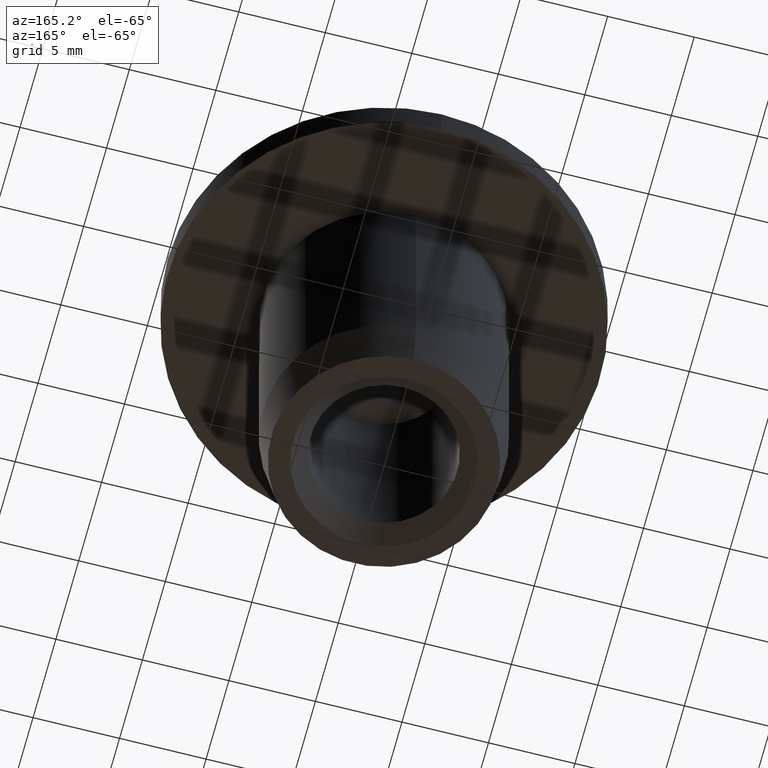
[diagram: clean part render]
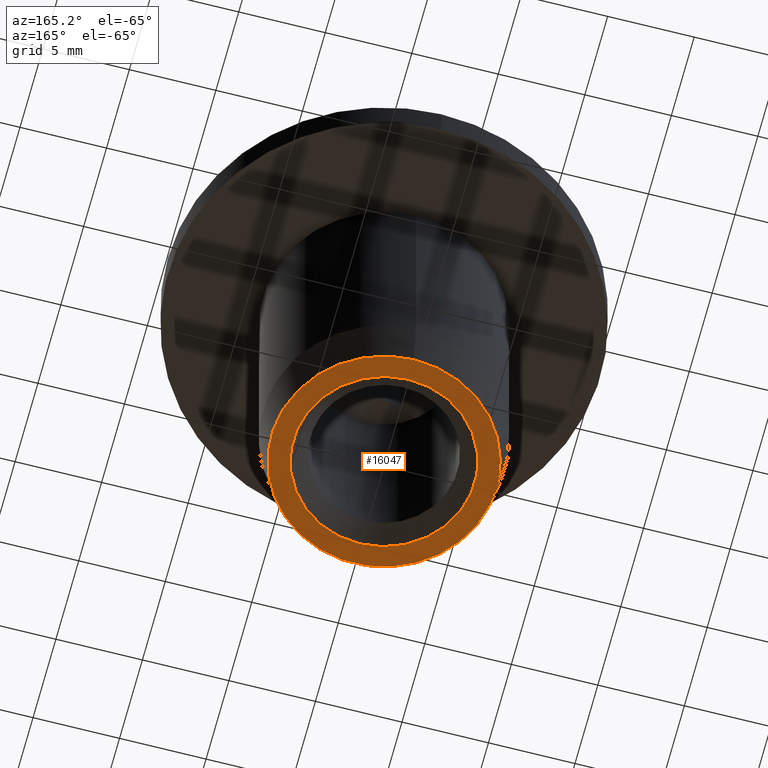
[diagram: same view with one face highlighted and labeled with its STEP entity id]
A machine part, auxiliary view. The second image highlights one B-rep face of the part: STEP entity #16047.
In plain terms, the highlighted planar face has unit normal (-0, 0, -1).
Its self-contained STEP definition (entity closure, byte-faithful):
#137 = AXIS2_PLACEMENT_3D ( 'NONE', #10447, #1639, #2836 ) ;
#760 = ORIENTED_EDGE ( 'NONE', *, *, #15434, .T. ) ;
#1639 = DIRECTION ( 'NONE',  ( -0.000000000000000000, 2.332352011257933532E-16, -1.000000000000000000 ) ) ;
#1648 = AXIS2_PLACEMENT_3D ( 'NONE', #4436, #3100, #14623 ) ;
#1920 = CIRCLE ( 'NONE', #137, 6.500000000000047962 ) ;
#2836 = DIRECTION ( 'NONE',  ( 0.000000000000000000, 1.000000000000000000, 2.668805347656606464E-16 ) ) ;
#3100 = DIRECTION ( 'NONE',  ( -0.000000000000000000, 2.332352011257933532E-16, -1.000000000000000000 ) ) ;
#3416 = CARTESIAN_POINT ( 'NONE',  ( 0.000000000000000000, 5.250000000000000000, -10.24999999999999822 ) ) ;
#3495 = DIRECTION ( 'NONE',  ( 0.000000000000000000, -2.332352011257933532E-16, 1.000000000000000000 ) ) ;
#3582 = CARTESIAN_POINT ( 'NONE',  ( 0.000000000000000000, 6.500000000000052403, -10.24999999999999822 ) ) ;
#4392 = FACE_OUTER_BOUND ( 'NONE', #9708, .T. ) ;
#4436 = CARTESIAN_POINT ( 'NONE',  ( 0.000000000000000000, 7.000000000000004441, -10.24999999999999822 ) ) ;
#4981 = FACE_BOUND ( 'NONE', #15461, .T. ) ;
#8161 = VERTEX_POINT ( 'NONE', #3582 ) ;
#8379 = PLANE ( 'NONE',  #1648 ) ;
#9708 = EDGE_LOOP ( 'NONE', ( #11578 ) ) ;
#9944 = DIRECTION ( 'NONE',  ( 0.000000000000000000, 1.000000000000000000, 3.304235192336776991E-16 ) ) ;
#10447 = CARTESIAN_POINT ( 'NONE',  ( 0.000000000000000000, 4.034287075598875649E-15, -10.25000000000000000 ) ) ;
#11085 = CARTESIAN_POINT ( 'NONE',  ( 0.000000000000000000, 2.390660811539381525E-15, -10.25000000000000000 ) ) ;
#11398 = EDGE_CURVE ( 'NONE', #8161, #8161, #1920, .T. ) ;
#11578 = ORIENTED_EDGE ( 'NONE', *, *, #11398, .T. ) ;
#11904 = AXIS2_PLACEMENT_3D ( 'NONE', #11085, #3495, #9944 ) ;
#12937 = CIRCLE ( 'NONE', #11904, 5.249999999999997335 ) ;
#14623 = DIRECTION ( 'NONE',  ( 0.000000000000000000, 1.000000000000000000, 2.332352011257933532E-16 ) ) ;
#15434 = EDGE_CURVE ( 'NONE', #15920, #15920, #12937, .T. ) ;
#15461 = EDGE_LOOP ( 'NONE', ( #760 ) ) ;
#15920 = VERTEX_POINT ( 'NONE', #3416 ) ;
#16047 = ADVANCED_FACE ( 'NONE', ( #4981, #4392 ), #8379, .T. ) ;